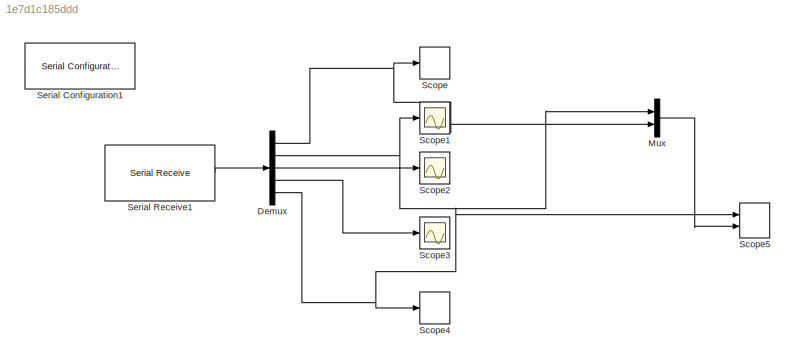
MODEL slx_1e7d1c185ddd
KIND model
CONFIG AbsTol = auto
CONFIG FixedStep = 0.001
CONFIG MaxStep = auto
CONFIG MinStep = auto
CONFIG RelTol = 1e-3
CONFIG SampleTimeConstraint = Unconstrained
CONFIG Solver = ode3
CONFIG SolverMode = Auto
CONFIG SolverName = ode3
CONFIG StartTime = 0.0
CONFIG StopTime = 0.5
BLOCK [Demux] Demux
  DisplayOption = bar
  Outputs = 5
  Ports = [1, 5]
BLOCK [Mux] Mux
  DisplayOption = bar
  Inputs = 2
  Ports = [2, 1]
BLOCK [TimeScope] Scope
  NumInputPorts = 1
  Ports = [1]
  ScopeSpecificationString = Simulink.scopes.TimeScopeBlockCfg('CurrentConfiguration', extmgr.ConfigurationSet(extmgr.Configuration('Core','General UI',true),extmgr.Configuration('Core','Source UI',true),extmgr.Configuration('Sources','WiredSimulink',true,'DataLoggingDecimation','1','DataLoggingDecimateData',true,'DataLoggingSaveFormat','Structure','DataLogging',true),extmgr.Configuration('Visuals','Time Domain',true,'Seriali...<+2040ch>
BLOCK [Scope] Scope1
  DataFormat = Structure
  Floating = off
  LimitDataPoints = off
  NumInputPorts = 1
  Ports = [1]
  SaveName = ScopeData1
  SaveToWorkspace = on
  YMax = 0
  YMin = -2e+28
BLOCK [Scope] Scope2
  DataFormat = Structure
  Floating = off
  LimitDataPoints = off
  NumInputPorts = 1
  Ports = [1]
  SaveName = ScopeData2
  SaveToWorkspace = on
  YMax = 0
  YMin = -2e+28
BLOCK [Scope] Scope3
  DataFormat = Structure
  Floating = off
  LimitDataPoints = off
  NumInputPorts = 1
  Ports = [1]
  SaveName = ScopeData3
  SaveToWorkspace = on
  YMax = 1087.88
  YMin = 0
BLOCK [TimeScope] Scope4
  NumInputPorts = 1
  Ports = [1]
  ScopeSpecificationString = Simulink.scopes.TimeScopeBlockCfg('CurrentConfiguration', extmgr.ConfigurationSet(extmgr.Configuration('Core','General UI',true),extmgr.Configuration('Core','Source UI',true),extmgr.Configuration('Sources','WiredSimulink',true,'DataLogging',true,'DataLoggingVariableName','ScopeData4','DataLoggingDecimation','1','DataLoggingDecimateData',true,'DataLoggingSaveFormat','Structure'),extmgr.Configuratio...<+1627ch>
BLOCK [TimeScope] Scope5
  NumInputPorts = 2
  Ports = [2]
  ScopeSpecificationString = Simulink.scopes.TimeScopeBlockCfg('CurrentConfiguration', extmgr.ConfigurationSet(extmgr.Configuration('Core','General UI',true),extmgr.Configuration('Core','Source UI',true),extmgr.Configuration('Sources','WiredSimulink',true,'DataLoggingVariableName','ScopeData5','DataLoggingDecimation','1','DataLoggingDecimateData',true,'DataLoggingSaveFormat','Structure'),extmgr.Configuration('Visuals','Time D...<+2587ch>
BLOCK [Reference] Serial Configuration1  REF=instrumentlib/Serial Configuration
  BaudRate = 460800
  ByteOrder = BigEndian
  ComPort = COM3
  ComPortMenu = <Please select a port...>
  DataBits = 8
  FlowControl = none
  ObjConstructor = serial('COM3');
  Parity = none
  Ports = []
  Priority = -200000
  SourceBlock = instrumentlib/Serial Configuration
  SourceType = Serial Configuration
  StopBits = 1
  Timeout = 10
BLOCK [Reference] Serial Receive1  REF=instrumentlib/Serial Receive
  ActionDataUnavailable = Output last received value
  ComPort = COM3
  ComPortMenu = COM3
  CustomValue = 0
  DataSize = [5  1]
  DataType = single
  EnableBlockingMode = on
  ObjConstructor = serial('COM3');
  Ports = [0, 1]
  SampleTime = 0.001
  SourceBlock = instrumentlib/Serial Receive
  SourceType = Serial Receive
  Terminator = LF ('\n')
NET Demux:1 -> Mux:2, Scope:1
NET Demux:2 -> Mux:1, Scope1:1
LINE Demux:3 -> Scope2:1
LINE Demux:4 -> Scope3:1
NET Demux:5 -> Scope4:1, Scope5:1
LINE Mux:1 -> Scope5:2
LINE Serial Receive1:1 -> Demux:1
note: NET lines group one-source signal fan-out (src -> all destinations, sorted); 1:1 wires keep LINE
